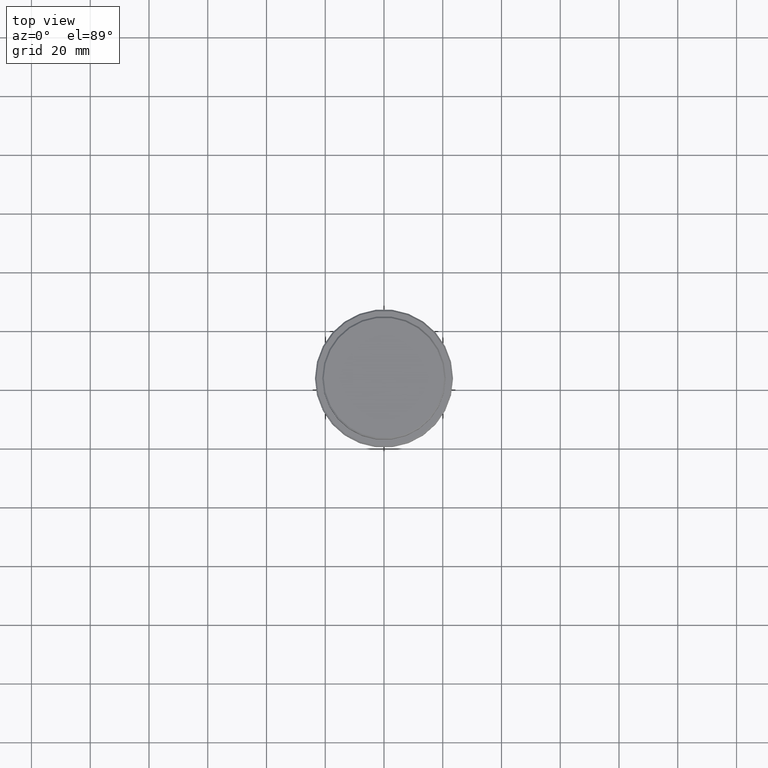
[diagram: clean part render]
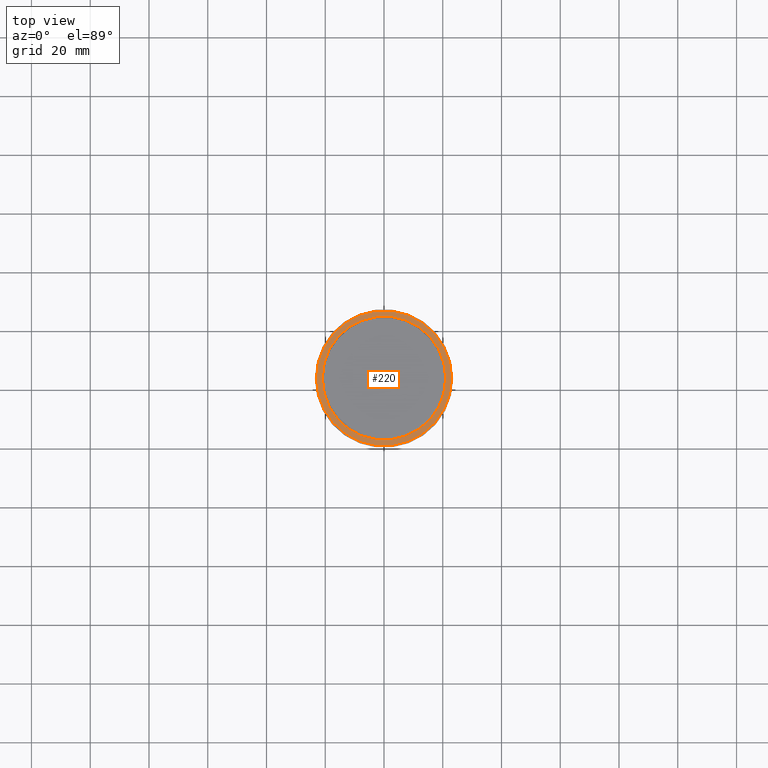
[diagram: same view with one face highlighted and labeled with its STEP entity id]
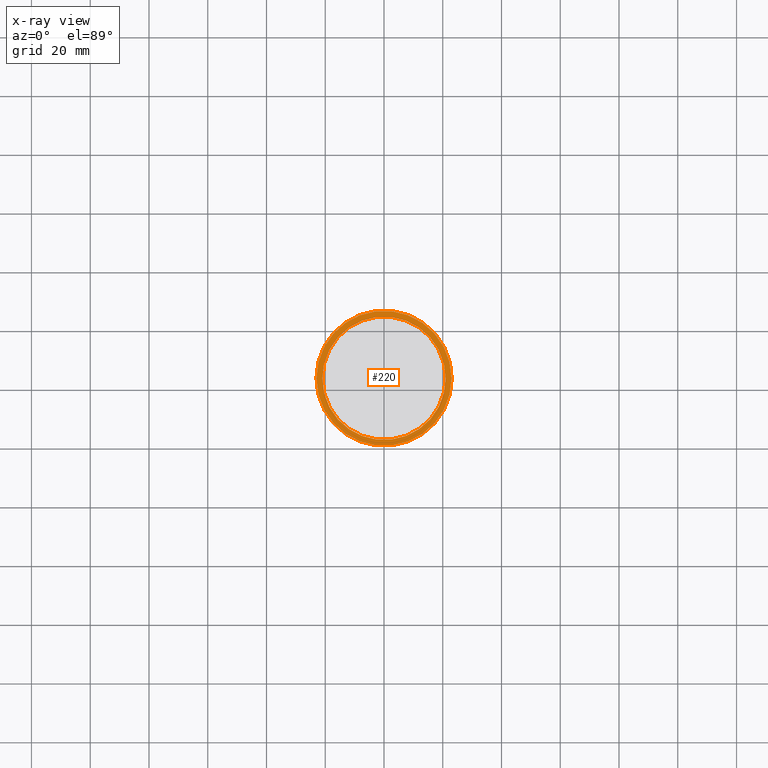
[diagram: x-ray of the same camera — body ghosted, the highlighted face saturated]
A machine part, top view. The second image highlights one B-rep face of the part: STEP entity #220.
The next image is the same camera in x-ray: the body ghosted, the highlighted face saturated — about 0% of this face is hidden behind the body in this view.
In plain terms, the highlighted planar face has unit normal (0, -0, 1).
Its self-contained STEP definition (entity closure, byte-faithful):
#76 = DIRECTION ( 'NONE',  ( 1.000000000000000000, 0.000000000000000000, 0.000000000000000000 ) ) ;
#90 = ORIENTED_EDGE ( 'NONE', *, *, #1182, .T. ) ;
#189 = ORIENTED_EDGE ( 'NONE', *, *, #457, .T. ) ;
#192 = CARTESIAN_POINT ( 'NONE',  ( 0.000000000000000000, 0.000000000000000000, -9.000000000000000000 ) ) ;
#202 = CARTESIAN_POINT ( 'NONE',  ( 0.000000000000000000, 0.000000000000000000, -9.000000000000000000 ) ) ;
#220 = ADVANCED_FACE ( 'NONE', ( #596, #867 ), #649, .T. ) ;
#236 = CARTESIAN_POINT ( 'NONE',  ( 20.99999999999999289, 0.000000000000000000, -9.000000000000000000 ) ) ;
#276 = VERTEX_POINT ( 'NONE', #1140 ) ;
#315 = DIRECTION ( 'NONE',  ( 1.000000000000000000, 0.000000000000000000, 0.000000000000000000 ) ) ;
#319 = EDGE_CURVE ( 'NONE', #586, #781, #1068, .T. ) ;
#321 = DIRECTION ( 'NONE',  ( 1.000000000000000000, 0.000000000000000000, 0.000000000000000000 ) ) ;
#410 = DIRECTION ( 'NONE',  ( -0.000000000000000000, -0.000000000000000000, 1.000000000000000000 ) ) ;
#417 = CARTESIAN_POINT ( 'NONE',  ( 0.000000000000000000, 0.000000000000000000, -9.000000000000000000 ) ) ;
#457 = EDGE_CURVE ( 'NONE', #601, #276, #953, .T. ) ;
#469 = CARTESIAN_POINT ( 'NONE',  ( -23.00000000000002487, 0.000000000000000000, -9.000000000000000000 ) ) ;
#476 = AXIS2_PLACEMENT_3D ( 'NONE', #202, #1306, #315 ) ;
#560 = AXIS2_PLACEMENT_3D ( 'NONE', #417, #410, #876 ) ;
#586 = VERTEX_POINT ( 'NONE', #236 ) ;
#596 = FACE_OUTER_BOUND ( 'NONE', #628, .T. ) ;
#601 = VERTEX_POINT ( 'NONE', #469 ) ;
#628 = EDGE_LOOP ( 'NONE', ( #189, #1230 ) ) ;
#639 = AXIS2_PLACEMENT_3D ( 'NONE', #1042, #1167, #76 ) ;
#649 = PLANE ( 'NONE',  #1224 ) ;
#741 = DIRECTION ( 'NONE',  ( 0.000000000000000000, 0.000000000000000000, -1.000000000000000000 ) ) ;
#781 = VERTEX_POINT ( 'NONE', #1360 ) ;
#854 = EDGE_CURVE ( 'NONE', #276, #601, #1249, .T. ) ;
#867 = FACE_BOUND ( 'NONE', #965, .T. ) ;
#876 = DIRECTION ( 'NONE',  ( 1.000000000000000000, 0.000000000000000000, 0.000000000000000000 ) ) ;
#953 = CIRCLE ( 'NONE', #476, 23.00000000000002487 ) ;
#965 = EDGE_LOOP ( 'NONE', ( #1350, #90 ) ) ;
#1016 = AXIS2_PLACEMENT_3D ( 'NONE', #192, #741, #1155 ) ;
#1042 = CARTESIAN_POINT ( 'NONE',  ( 0.000000000000000000, 0.000000000000000000, -9.000000000000000000 ) ) ;
#1068 = CIRCLE ( 'NONE', #1016, 20.99999999999999289 ) ;
#1140 = CARTESIAN_POINT ( 'NONE',  ( 23.00000000000002487, 2.847303808017597717E-15, -9.000000000000000000 ) ) ;
#1155 = DIRECTION ( 'NONE',  ( 1.000000000000000000, 0.000000000000000000, 0.000000000000000000 ) ) ;
#1167 = DIRECTION ( 'NONE',  ( 0.000000000000000000, 0.000000000000000000, -1.000000000000000000 ) ) ;
#1182 = EDGE_CURVE ( 'NONE', #781, #586, #1253, .T. ) ;
#1224 = AXIS2_PLACEMENT_3D ( 'NONE', #1254, #1311, #321 ) ;
#1230 = ORIENTED_EDGE ( 'NONE', *, *, #854, .T. ) ;
#1249 = CIRCLE ( 'NONE', #560, 23.00000000000002487 ) ;
#1253 = CIRCLE ( 'NONE', #639, 20.99999999999999289 ) ;
#1254 = CARTESIAN_POINT ( 'NONE',  ( 0.000000000000000000, 20.49999999999999645, -9.000000000000000000 ) ) ;
#1306 = DIRECTION ( 'NONE',  ( -0.000000000000000000, -0.000000000000000000, 1.000000000000000000 ) ) ;
#1311 = DIRECTION ( 'NONE',  ( 0.000000000000000000, -0.000000000000000000, 1.000000000000000000 ) ) ;
#1350 = ORIENTED_EDGE ( 'NONE', *, *, #319, .T. ) ;
#1360 = CARTESIAN_POINT ( 'NONE',  ( -20.99999999999999289, 2.571758278209440872E-15, -9.000000000000000000 ) ) ;